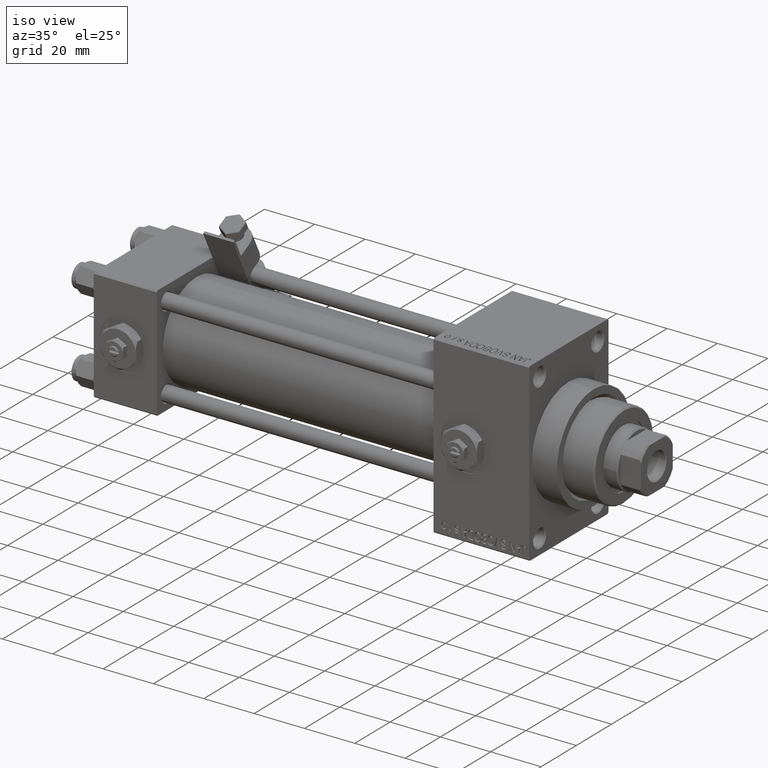
[diagram: clean part render]
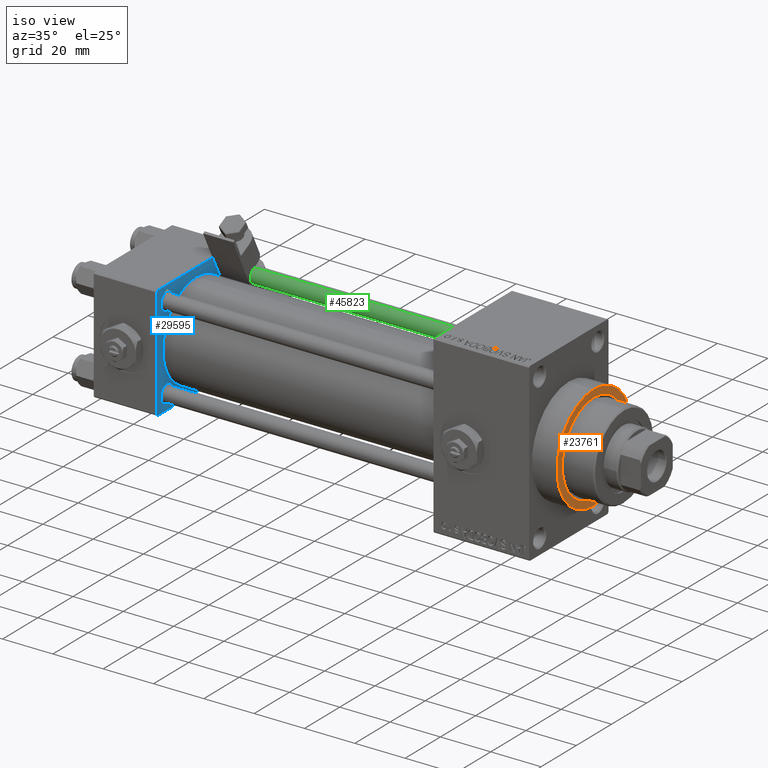
[diagram: same view with three faces highlighted in distinct colors, each labeled with its STEP entity id]
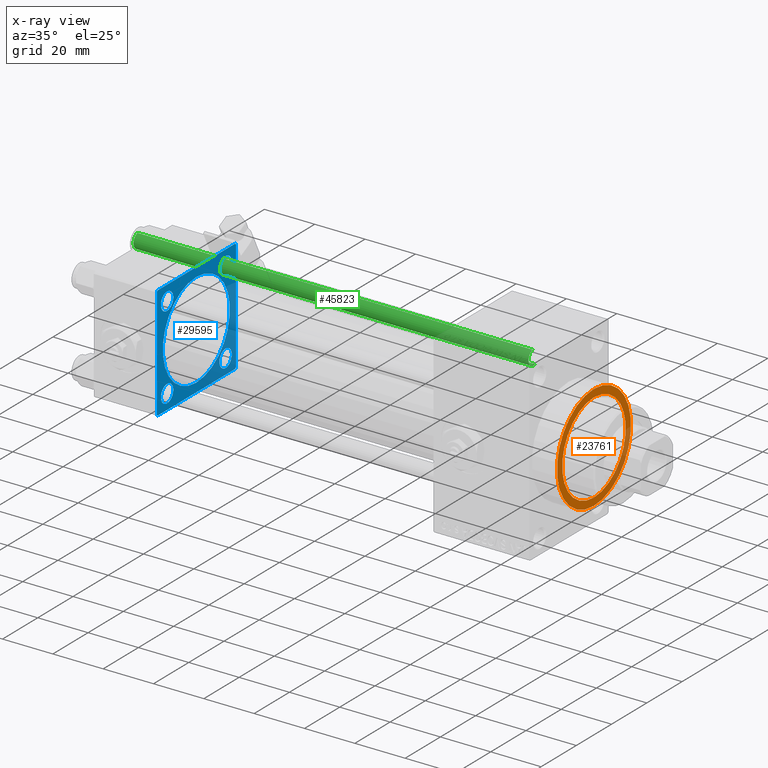
[diagram: x-ray of the same camera — body ghosted, the three highlighted faces saturated]
A machine part, iso view with three faces highlighted in distinct colors.
The next image is the same camera in x-ray (body ghosted, the three faces saturated) — at least one of them is partly hidden behind the body in this view.
Their STEP definitions:

[orange] entity #23761 — the highlighted planar face has unit normal (1, 0, 0).
#3965 = CARTESIAN_POINT ( 'NONE',  ( 183.0000000000000284, 2.571758278209441661E-15, -21.00000000000000000 ) ) ;
#6290 = CIRCLE ( 'NONE', #41016, 18.00000000000007105 ) ;
#7296 = CARTESIAN_POINT ( 'NONE',  ( 183.0000000000000284, 0.000000000000000000, 0.000000000000000000 ) ) ;
#7504 = ORIENTED_EDGE ( 'NONE', *, *, #13057, .T. ) ;
#8502 = DIRECTION ( 'NONE',  ( -1.000000000000000000, -0.000000000000000000, -0.000000000000000000 ) ) ;
#9702 = EDGE_LOOP ( 'NONE', ( #39299, #7504 ) ) ;
#10921 = EDGE_CURVE ( 'NONE', #29826, #20078, #31922, .T. ) ;
#12497 = AXIS2_PLACEMENT_3D ( 'NONE', #7296, #15423, #46866 ) ;
#13057 = EDGE_CURVE ( 'NONE', #45321, #49260, #25549, .T. ) ;
#15228 = DIRECTION ( 'NONE',  ( 1.000000000000000000, 0.000000000000000000, 0.000000000000000000 ) ) ;
#15423 = DIRECTION ( 'NONE',  ( 1.000000000000000000, 0.000000000000000000, 0.000000000000000000 ) ) ;
#16013 = AXIS2_PLACEMENT_3D ( 'NONE', #27638, #15228, #23098 ) ;
#16128 = DIRECTION ( 'NONE',  ( 0.000000000000000000, 0.000000000000000000, -1.000000000000000000 ) ) ;
#20078 = VERTEX_POINT ( 'NONE', #3965 ) ;
#20170 = CARTESIAN_POINT ( 'NONE',  ( 183.0000000000000284, 0.000000000000000000, 0.000000000000000000 ) ) ;
#20355 = CARTESIAN_POINT ( 'NONE',  ( 183.0000000000000284, 0.000000000000000000, -18.00000000000007105 ) ) ;
#20555 = FACE_OUTER_BOUND ( 'NONE', #27015, .T. ) ;
#21047 = ORIENTED_EDGE ( 'NONE', *, *, #34416, .T. ) ;
#21343 = ORIENTED_EDGE ( 'NONE', *, *, #10921, .T. ) ;
#23072 = CARTESIAN_POINT ( 'NONE',  ( 183.0000000000000284, 2.204364238465244894E-15, 18.00000000000007105 ) ) ;
#23098 = DIRECTION ( 'NONE',  ( 0.000000000000000000, 0.000000000000000000, -1.000000000000000000 ) ) ;
#23357 = FACE_BOUND ( 'NONE', #9702, .T. ) ;
#23761 = ADVANCED_FACE ( 'NONE', ( #23357, #20555 ), #34992, .T. ) ;
#24372 = DIRECTION ( 'NONE',  ( 0.000000000000000000, 0.000000000000000000, -1.000000000000000000 ) ) ;
#25136 = CARTESIAN_POINT ( 'NONE',  ( 183.0000000000000284, 0.000000000000000000, 21.00000000000000000 ) ) ;
#25549 = CIRCLE ( 'NONE', #32796, 18.00000000000007105 ) ;
#26441 = CIRCLE ( 'NONE', #16013, 21.00000000000000000 ) ;
#27015 = EDGE_LOOP ( 'NONE', ( #21343, #21047 ) ) ;
#27017 = CARTESIAN_POINT ( 'NONE',  ( 183.0000000000000284, 0.000000000000000000, 0.000000000000000000 ) ) ;
#27398 = DIRECTION ( 'NONE',  ( 1.000000000000000000, 0.000000000000000000, 0.000000000000000000 ) ) ;
#27638 = CARTESIAN_POINT ( 'NONE',  ( 183.0000000000000284, 0.000000000000000000, 0.000000000000000000 ) ) ;
#29826 = VERTEX_POINT ( 'NONE', #25136 ) ;
#30565 = DIRECTION ( 'NONE',  ( 0.000000000000000000, 0.000000000000000000, -1.000000000000000000 ) ) ;
#31922 = CIRCLE ( 'NONE', #12497, 21.00000000000000000 ) ;
#32796 = AXIS2_PLACEMENT_3D ( 'NONE', #27017, #49853, #30565 ) ;
#34416 = EDGE_CURVE ( 'NONE', #20078, #29826, #26441, .T. ) ;
#34992 = PLANE ( 'NONE',  #42313 ) ;
#36004 = CARTESIAN_POINT ( 'NONE',  ( 183.0000000000000284, 0.000000000000000000, 0.000000000000000000 ) ) ;
#36055 = EDGE_CURVE ( 'NONE', #49260, #45321, #6290, .T. ) ;
#39299 = ORIENTED_EDGE ( 'NONE', *, *, #36055, .T. ) ;
#41016 = AXIS2_PLACEMENT_3D ( 'NONE', #20170, #8502, #16128 ) ;
#42313 = AXIS2_PLACEMENT_3D ( 'NONE', #36004, #27398, #24372 ) ;
#45321 = VERTEX_POINT ( 'NONE', #23072 ) ;
#46866 = DIRECTION ( 'NONE',  ( 0.000000000000000000, 0.000000000000000000, -1.000000000000000000 ) ) ;
#49260 = VERTEX_POINT ( 'NONE', #20355 ) ;
#49853 = DIRECTION ( 'NONE',  ( -1.000000000000000000, -0.000000000000000000, -0.000000000000000000 ) ) ;

[blue] entity #29595 — the highlighted planar face has unit normal (-1, 0, 0).
#629 = VERTEX_POINT ( 'NONE', #40461 ) ;
#819 = VERTEX_POINT ( 'NONE', #5394 ) ;
#1004 = CARTESIAN_POINT ( 'NONE',  ( 25.00000000000000000, 16.59999999999999787, 13.10000000000000142 ) ) ;
#1236 = DIRECTION ( 'NONE',  ( 0.000000000000000000, 0.000000000000000000, 1.000000000000000000 ) ) ;
#1811 = EDGE_CURVE ( 'NONE', #34695, #8193, #17989, .T. ) ;
#1978 = VECTOR ( 'NONE', #35354, 1000.000000000000000 ) ;
#2131 = FACE_BOUND ( 'NONE', #39763, .T. ) ;
#2202 = CARTESIAN_POINT ( 'NONE',  ( 25.00000000000000000, -16.59999999999999076, -16.60000000000000853 ) ) ;
#2408 = VERTEX_POINT ( 'NONE', #1004 ) ;
#2744 = CIRCLE ( 'NONE', #35097, 3.499999999999975131 ) ;
#2845 = LINE ( 'NONE', #38085, #32699 ) ;
#3369 = ORIENTED_EDGE ( 'NONE', *, *, #9755, .T. ) ;
#3499 = ORIENTED_EDGE ( 'NONE', *, *, #10101, .T. ) ;
#3694 = VERTEX_POINT ( 'NONE', #7634 ) ;
#4147 = CARTESIAN_POINT ( 'NONE',  ( 25.00000000000000000, 16.59999999999999787, -16.60000000000000497 ) ) ;
#4224 = DIRECTION ( 'NONE',  ( 0.000000000000000000, 0.000000000000000000, 1.000000000000000000 ) ) ;
#4343 = DIRECTION ( 'NONE',  ( 0.000000000000000000, -0.7071067811865474617, 0.7071067811865474617 ) ) ;
#4612 = CARTESIAN_POINT ( 'NONE',  ( 25.00000000000000000, -16.59999999999999076, 16.60000000000000853 ) ) ;
#4655 = DIRECTION ( 'NONE',  ( -1.000000000000000000, 0.000000000000000000, -0.000000000000000000 ) ) ;
#4969 = CARTESIAN_POINT ( 'NONE',  ( 25.00000000000000000, -16.59999999999999076, -13.10000000000003162 ) ) ;
#5394 = CARTESIAN_POINT ( 'NONE',  ( 25.00000000000000000, 16.59999999999999787, -13.10000000000000142 ) ) ;
#5764 = DIRECTION ( 'NONE',  ( -1.000000000000000000, 0.000000000000000000, -0.000000000000000000 ) ) ;
#6464 = DIRECTION ( 'NONE',  ( -1.000000000000000000, 0.000000000000000000, -0.000000000000000000 ) ) ;
#6686 = ORIENTED_EDGE ( 'NONE', *, *, #47954, .T. ) ;
#6789 = ORIENTED_EDGE ( 'NONE', *, *, #35457, .T. ) ;
#7385 = CARTESIAN_POINT ( 'NONE',  ( 25.00000000000000000, 22.50000000000000000, 22.50000000000000355 ) ) ;
#7454 = DIRECTION ( 'NONE',  ( 0.000000000000000000, 0.000000000000000000, 1.000000000000000000 ) ) ;
#7634 = CARTESIAN_POINT ( 'NONE',  ( 25.00000000000000000, 16.59999999999999787, -20.10000000000000853 ) ) ;
#7724 = EDGE_CURVE ( 'NONE', #12552, #13082, #46464, .T. ) ;
#7725 = CARTESIAN_POINT ( 'NONE',  ( 24.99999999999999289, -2.752562955852396712E-16, -19.00000000000000000 ) ) ;
#7818 = AXIS2_PLACEMENT_3D ( 'NONE', #29069, #44559, #36917 ) ;
#8193 = VERTEX_POINT ( 'NONE', #4969 ) ;
#8263 = VERTEX_POINT ( 'NONE', #44803 ) ;
#8357 = CIRCLE ( 'NONE', #9213, 3.500000000000003109 ) ;
#8383 = EDGE_CURVE ( 'NONE', #819, #3694, #44930, .T. ) ;
#8581 = AXIS2_PLACEMENT_3D ( 'NONE', #44546, #6464, #18147 ) ;
#8715 = VECTOR ( 'NONE', #47803, 1000.000000000000000 ) ;
#8805 = CARTESIAN_POINT ( 'NONE',  ( 25.00000000000000000, -16.59999999999999076, -16.60000000000000853 ) ) ;
#9011 = FACE_BOUND ( 'NONE', #45629, .T. ) ;
#9070 = LINE ( 'NONE', #17449, #14711 ) ;
#9213 = AXIS2_PLACEMENT_3D ( 'NONE', #33915, #14657, #10841 ) ;
#9266 = DIRECTION ( 'NONE',  ( -1.000000000000000000, 0.000000000000000000, -0.000000000000000000 ) ) ;
#9494 = VERTEX_POINT ( 'NONE', #48294 ) ;
#9755 = EDGE_CURVE ( 'NONE', #44622, #12552, #42660, .T. ) ;
#10101 = EDGE_CURVE ( 'NONE', #8193, #34695, #2744, .T. ) ;
#10239 = EDGE_CURVE ( 'NONE', #629, #22292, #2845, .T. ) ;
#10685 = VERTEX_POINT ( 'NONE', #46172 ) ;
#10841 = DIRECTION ( 'NONE',  ( 0.000000000000000000, 0.000000000000000000, 1.000000000000000000 ) ) ;
#11489 = CARTESIAN_POINT ( 'NONE',  ( 25.00000000000000000, -16.59999999999999076, 20.09999999999998721 ) ) ;
#11795 = AXIS2_PLACEMENT_3D ( 'NONE', #41023, #33403, #44854 ) ;
#12097 = DIRECTION ( 'NONE',  ( -1.000000000000000000, 0.000000000000000000, -0.000000000000000000 ) ) ;
#12552 = VERTEX_POINT ( 'NONE', #41444 ) ;
#12817 = CARTESIAN_POINT ( 'NONE',  ( 25.00000000000000000, 0.000000000000000000, 0.000000000000000000 ) ) ;
#13082 = VERTEX_POINT ( 'NONE', #46065 ) ;
#14582 = CARTESIAN_POINT ( 'NONE',  ( 25.00000000000000000, 22.50000000000000000, 21.99999999999999645 ) ) ;
#14657 = DIRECTION ( 'NONE',  ( -1.000000000000000000, 0.000000000000000000, -0.000000000000000000 ) ) ;
#14711 = VECTOR ( 'NONE', #20999, 999.9999999999998863 ) ;
#16377 = EDGE_CURVE ( 'NONE', #2408, #31648, #23213, .T. ) ;
#16676 = CARTESIAN_POINT ( 'NONE',  ( 25.00000000000000000, -22.50000000000000000, -21.99999999999997158 ) ) ;
#17136 = DIRECTION ( 'NONE',  ( -0.000000000000000000, 0.000000000000000000, 1.000000000000000000 ) ) ;
#17181 = DIRECTION ( 'NONE',  ( 0.000000000000000000, 0.000000000000000000, -1.000000000000000000 ) ) ;
#17449 = CARTESIAN_POINT ( 'NONE',  ( 25.00000000000000000, -22.50000000000000000, 22.00000000000000000 ) ) ;
#17537 = AXIS2_PLACEMENT_3D ( 'NONE', #4612, #47237, #40382 ) ;
#17744 = EDGE_CURVE ( 'NONE', #21537, #10685, #46985, .T. ) ;
#17797 = DIRECTION ( 'NONE',  ( 1.000000000000000000, -0.000000000000000000, 0.000000000000000000 ) ) ;
#17989 = CIRCLE ( 'NONE', #27666, 3.499999999999975131 ) ;
#18147 = DIRECTION ( 'NONE',  ( 0.000000000000000000, 0.000000000000000000, 1.000000000000000000 ) ) ;
#18310 = ORIENTED_EDGE ( 'NONE', *, *, #1811, .T. ) ;
#19103 = CIRCLE ( 'NONE', #8581, 3.500000000000003109 ) ;
#19569 = DIRECTION ( 'NONE',  ( 0.000000000000000000, -1.000000000000000000, -7.709882115452476934E-17 ) ) ;
#19814 = VECTOR ( 'NONE', #19569, 1000.000000000000000 ) ;
#20153 = LINE ( 'NONE', #35601, #8715 ) ;
#20999 = DIRECTION ( 'NONE',  ( -0.000000000000000000, -0.7071067811865525687, -0.7071067811865425767 ) ) ;
#21240 = ORIENTED_EDGE ( 'NONE', *, *, #8383, .T. ) ;
#21537 = VERTEX_POINT ( 'NONE', #30039 ) ;
#22168 = VECTOR ( 'NONE', #4343, 1000.000000000000114 ) ;
#22180 = EDGE_CURVE ( 'NONE', #31648, #2408, #8357, .T. ) ;
#22262 = AXIS2_PLACEMENT_3D ( 'NONE', #12817, #9266, #17136 ) ;
#22292 = VERTEX_POINT ( 'NONE', #16676 ) ;
#22422 = VERTEX_POINT ( 'NONE', #7725 ) ;
#22782 = ORIENTED_EDGE ( 'NONE', *, *, #22180, .T. ) ;
#22976 = CARTESIAN_POINT ( 'NONE',  ( 25.00000000000000000, -21.99999999999998579, -22.50000000000000711 ) ) ;
#23038 = AXIS2_PLACEMENT_3D ( 'NONE', #4147, #4655, #7454 ) ;
#23213 = CIRCLE ( 'NONE', #7818, 3.500000000000003109 ) ;
#23544 = EDGE_LOOP ( 'NONE', ( #18310, #3499 ) ) ;
#24128 = CIRCLE ( 'NONE', #17537, 3.499999999999978684 ) ;
#24380 = VERTEX_POINT ( 'NONE', #11489 ) ;
#24607 = DIRECTION ( 'NONE',  ( -1.000000000000000000, 0.000000000000000000, -0.000000000000000000 ) ) ;
#24699 = EDGE_LOOP ( 'NONE', ( #44883, #34991, #37873, #3369, #49751, #6686, #33365, #35805 ) ) ;
#24881 = EDGE_LOOP ( 'NONE', ( #50171, #21240 ) ) ;
#25130 = ORIENTED_EDGE ( 'NONE', *, *, #16377, .T. ) ;
#25159 = DIRECTION ( 'NONE',  ( 0.000000000000000000, 0.000000000000000000, 1.000000000000000000 ) ) ;
#25238 = CARTESIAN_POINT ( 'NONE',  ( 25.00000000000000000, -16.59999999999999076, -20.09999999999998366 ) ) ;
#25241 = PLANE ( 'NONE',  #22262 ) ;
#26718 = VERTEX_POINT ( 'NONE', #47727 ) ;
#27440 = DIRECTION ( 'NONE',  ( -0.000000000000000000, 0.7071067811865426878, 0.7071067811865524577 ) ) ;
#27666 = AXIS2_PLACEMENT_3D ( 'NONE', #2202, #5764, #44340 ) ;
#27823 = EDGE_CURVE ( 'NONE', #9494, #22422, #48134, .T. ) ;
#28531 = FACE_BOUND ( 'NONE', #24881, .T. ) ;
#28547 = EDGE_CURVE ( 'NONE', #21537, #8263, #42987, .T. ) ;
#29069 = CARTESIAN_POINT ( 'NONE',  ( 25.00000000000000000, 16.59999999999999787, 16.60000000000000497 ) ) ;
#29595 = ADVANCED_FACE ( 'NONE', ( #36380, #28531, #44020, #2131, #9011, #44271 ), #25241, .F. ) ;
#30039 = CARTESIAN_POINT ( 'NONE',  ( 25.00000000000000000, 21.99999999999999289, -22.49999999999999645 ) ) ;
#30152 = EDGE_CURVE ( 'NONE', #22422, #9494, #31216, .T. ) ;
#31216 = CIRCLE ( 'NONE', #11795, 19.00000000000000000 ) ;
#31353 = EDGE_CURVE ( 'NONE', #3694, #819, #19103, .T. ) ;
#31648 = VERTEX_POINT ( 'NONE', #37036 ) ;
#32099 = VECTOR ( 'NONE', #39184, 1000.000000000000000 ) ;
#32699 = VECTOR ( 'NONE', #17181, 1000.000000000000000 ) ;
#33365 = ORIENTED_EDGE ( 'NONE', *, *, #10239, .T. ) ;
#33403 = DIRECTION ( 'NONE',  ( 1.000000000000000000, -0.000000000000000000, 0.000000000000000000 ) ) ;
#33541 = AXIS2_PLACEMENT_3D ( 'NONE', #40366, #17797, #25159 ) ;
#33915 = CARTESIAN_POINT ( 'NONE',  ( 25.00000000000000000, 16.59999999999999787, 16.60000000000000497 ) ) ;
#34607 = CARTESIAN_POINT ( 'NONE',  ( 25.00000000000000000, 22.50000000000000000, -22.49999999999999645 ) ) ;
#34695 = VERTEX_POINT ( 'NONE', #25238 ) ;
#34991 = ORIENTED_EDGE ( 'NONE', *, *, #17744, .T. ) ;
#35097 = AXIS2_PLACEMENT_3D ( 'NONE', #8805, #12097, #4224 ) ;
#35151 = ORIENTED_EDGE ( 'NONE', *, *, #27823, .F. ) ;
#35354 = DIRECTION ( 'NONE',  ( 0.000000000000000000, -1.000000000000000000, -2.312964634635742957E-16 ) ) ;
#35457 = EDGE_CURVE ( 'NONE', #26718, #24380, #24128, .T. ) ;
#35601 = CARTESIAN_POINT ( 'NONE',  ( 25.00000000000000000, 22.50000000000000000, 22.50000000000000355 ) ) ;
#35700 = CIRCLE ( 'NONE', #45463, 3.499999999999978684 ) ;
#35805 = ORIENTED_EDGE ( 'NONE', *, *, #35936, .T. ) ;
#35936 = EDGE_CURVE ( 'NONE', #22292, #8263, #46317, .T. ) ;
#36380 = FACE_BOUND ( 'NONE', #23544, .T. ) ;
#36917 = DIRECTION ( 'NONE',  ( 0.000000000000000000, 0.000000000000000000, 1.000000000000000000 ) ) ;
#37036 = CARTESIAN_POINT ( 'NONE',  ( 25.00000000000000000, 16.59999999999999787, 20.10000000000000853 ) ) ;
#37873 = ORIENTED_EDGE ( 'NONE', *, *, #38897, .F. ) ;
#38085 = CARTESIAN_POINT ( 'NONE',  ( 25.00000000000000000, -22.50000000000000000, 22.50000000000000000 ) ) ;
#38897 = EDGE_CURVE ( 'NONE', #44622, #10685, #20153, .T. ) ;
#39100 = CARTESIAN_POINT ( 'NONE',  ( 25.00000000000000000, 22.50000000000000000, -21.99999999999998224 ) ) ;
#39184 = DIRECTION ( 'NONE',  ( 0.000000000000000000, 0.7071067811865426878, -0.7071067811865524577 ) ) ;
#39327 = ORIENTED_EDGE ( 'NONE', *, *, #46939, .T. ) ;
#39763 = EDGE_LOOP ( 'NONE', ( #25130, #22782 ) ) ;
#40366 = CARTESIAN_POINT ( 'NONE',  ( 24.99999999999999289, -2.602085213965210642E-15, 0.000000000000000000 ) ) ;
#40382 = DIRECTION ( 'NONE',  ( 0.000000000000000000, 0.000000000000000000, 1.000000000000000000 ) ) ;
#40461 = CARTESIAN_POINT ( 'NONE',  ( 25.00000000000000000, -22.50000000000000000, 22.00000000000000000 ) ) ;
#41023 = CARTESIAN_POINT ( 'NONE',  ( 24.99999999999999289, -2.602085213965210642E-15, 0.000000000000000000 ) ) ;
#41444 = CARTESIAN_POINT ( 'NONE',  ( 25.00000000000000000, 21.99999999999999289, 22.50000000000000355 ) ) ;
#42402 = CARTESIAN_POINT ( 'NONE',  ( 25.00000000000000000, 21.99999999999999289, 22.50000000000000355 ) ) ;
#42660 = LINE ( 'NONE', #42402, #22168 ) ;
#42902 = ORIENTED_EDGE ( 'NONE', *, *, #30152, .F. ) ;
#42987 = LINE ( 'NONE', #34607, #1978 ) ;
#44020 = FACE_BOUND ( 'NONE', #49756, .T. ) ;
#44271 = FACE_OUTER_BOUND ( 'NONE', #24699, .T. ) ;
#44340 = DIRECTION ( 'NONE',  ( 0.000000000000000000, 0.000000000000000000, 1.000000000000000000 ) ) ;
#44546 = CARTESIAN_POINT ( 'NONE',  ( 25.00000000000000000, 16.59999999999999787, -16.60000000000000497 ) ) ;
#44559 = DIRECTION ( 'NONE',  ( -1.000000000000000000, 0.000000000000000000, -0.000000000000000000 ) ) ;
#44622 = VERTEX_POINT ( 'NONE', #14582 ) ;
#44803 = CARTESIAN_POINT ( 'NONE',  ( 25.00000000000000000, -21.99999999999997158, -22.50000000000000711 ) ) ;
#44854 = DIRECTION ( 'NONE',  ( 0.000000000000000000, 0.000000000000000000, 1.000000000000000000 ) ) ;
#44883 = ORIENTED_EDGE ( 'NONE', *, *, #28547, .F. ) ;
#44930 = CIRCLE ( 'NONE', #23038, 3.500000000000003109 ) ;
#45463 = AXIS2_PLACEMENT_3D ( 'NONE', #47681, #24607, #1236 ) ;
#45629 = EDGE_LOOP ( 'NONE', ( #35151, #42902 ) ) ;
#45950 = VECTOR ( 'NONE', #27440, 1000.000000000000000 ) ;
#46065 = CARTESIAN_POINT ( 'NONE',  ( 25.00000000000000000, -21.99999999999997868, 22.50000000000000000 ) ) ;
#46172 = CARTESIAN_POINT ( 'NONE',  ( 25.00000000000000000, 22.50000000000000000, -21.99999999999996803 ) ) ;
#46317 = LINE ( 'NONE', #22976, #32099 ) ;
#46464 = LINE ( 'NONE', #7385, #19814 ) ;
#46939 = EDGE_CURVE ( 'NONE', #24380, #26718, #35700, .T. ) ;
#46985 = LINE ( 'NONE', #39100, #45950 ) ;
#47237 = DIRECTION ( 'NONE',  ( -1.000000000000000000, 0.000000000000000000, -0.000000000000000000 ) ) ;
#47681 = CARTESIAN_POINT ( 'NONE',  ( 25.00000000000000000, -16.59999999999999076, 16.60000000000000853 ) ) ;
#47727 = CARTESIAN_POINT ( 'NONE',  ( 25.00000000000000000, -16.59999999999999076, 13.10000000000002807 ) ) ;
#47803 = DIRECTION ( 'NONE',  ( 0.000000000000000000, 0.000000000000000000, -1.000000000000000000 ) ) ;
#47954 = EDGE_CURVE ( 'NONE', #13082, #629, #9070, .T. ) ;
#48134 = CIRCLE ( 'NONE', #33541, 19.00000000000000000 ) ;
#48294 = CARTESIAN_POINT ( 'NONE',  ( 24.99999999999999289, -2.602085213965210642E-15, 19.00000000000000000 ) ) ;
#49751 = ORIENTED_EDGE ( 'NONE', *, *, #7724, .T. ) ;
#49756 = EDGE_LOOP ( 'NONE', ( #6789, #39327 ) ) ;
#50171 = ORIENTED_EDGE ( 'NONE', *, *, #31353, .T. ) ;

[green] entity #45823 — the highlighted cylindrical surface (edge-blend (fillet) strip) has radius 3 mm, axis along (-1, -0, 0).
#504 = AXIS2_PLACEMENT_3D ( 'NONE', #27847, #32154, #19997 ) ;
#1360 = AXIS2_PLACEMENT_3D ( 'NONE', #5677, #13555, #9495 ) ;
#2194 = DIRECTION ( 'NONE',  ( -0.000000000000000000, -0.000000000000000000, -1.000000000000000000 ) ) ;
#3326 = FACE_OUTER_BOUND ( 'NONE', #19677, .T. ) ;
#3576 = CYLINDRICAL_SURFACE ( 'NONE', #11390, 3.000000000000000444 ) ;
#4184 = CARTESIAN_POINT ( 'NONE',  ( 3.000000000000000444, 3.673940397442060361E-16, 158.0000000000000000 ) ) ;
#5677 = CARTESIAN_POINT ( 'NONE',  ( 0.000000000000000000, 0.000000000000000000, 0.5000000000000281997 ) ) ;
#6486 = VERTEX_POINT ( 'NONE', #30871 ) ;
#8821 = CARTESIAN_POINT ( 'NONE',  ( -3.000000000000000444, 0.000000000000000000, 158.0000000000000000 ) ) ;
#9216 = VERTEX_POINT ( 'NONE', #20790 ) ;
#9495 = DIRECTION ( 'NONE',  ( 1.000000000000000000, 0.000000000000000000, 0.000000000000000000 ) ) ;
#10028 = ORIENTED_EDGE ( 'NONE', *, *, #12453, .F. ) ;
#10287 = CIRCLE ( 'NONE', #1360, 3.000000000000000444 ) ;
#11101 = ORIENTED_EDGE ( 'NONE', *, *, #36848, .T. ) ;
#11390 = AXIS2_PLACEMENT_3D ( 'NONE', #31221, #26669, #42900 ) ;
#12453 = EDGE_CURVE ( 'NONE', #45024, #48065, #46569, .T. ) ;
#13555 = DIRECTION ( 'NONE',  ( -0.000000000000000000, -0.000000000000000000, 1.000000000000000000 ) ) ;
#17465 = EDGE_CURVE ( 'NONE', #6486, #48065, #10287, .T. ) ;
#17964 = VECTOR ( 'NONE', #2194, 1000.000000000000000 ) ;
#19677 = EDGE_LOOP ( 'NONE', ( #10028, #11101, #47953, #41487 ) ) ;
#19997 = DIRECTION ( 'NONE',  ( 1.000000000000000000, 0.000000000000000000, 0.000000000000000000 ) ) ;
#20698 = VECTOR ( 'NONE', #50113, 1000.000000000000000 ) ;
#20790 = CARTESIAN_POINT ( 'NONE',  ( -3.000000000000000444, 0.000000000000000000, 157.5000000000000000 ) ) ;
#22385 = CIRCLE ( 'NONE', #504, 3.000000000000000444 ) ;
#26669 = DIRECTION ( 'NONE',  ( -0.000000000000000000, -0.000000000000000000, -1.000000000000000000 ) ) ;
#27847 = CARTESIAN_POINT ( 'NONE',  ( 0.000000000000000000, 0.000000000000000000, 157.5000000000000000 ) ) ;
#30871 = CARTESIAN_POINT ( 'NONE',  ( -3.000000000000000444, 0.000000000000000000, 0.5000000000000281997 ) ) ;
#31221 = CARTESIAN_POINT ( 'NONE',  ( 0.000000000000000000, 0.000000000000000000, 158.0000000000000000 ) ) ;
#32154 = DIRECTION ( 'NONE',  ( 0.000000000000000000, 0.000000000000000000, -1.000000000000000000 ) ) ;
#36848 = EDGE_CURVE ( 'NONE', #45024, #9216, #22385, .T. ) ;
#39078 = CARTESIAN_POINT ( 'NONE',  ( 3.000000000000000444, 3.673940397442060361E-16, 157.5000000000000000 ) ) ;
#41487 = ORIENTED_EDGE ( 'NONE', *, *, #17465, .T. ) ;
#42900 = DIRECTION ( 'NONE',  ( -1.000000000000000000, 0.000000000000000000, 0.000000000000000000 ) ) ;
#44333 = CARTESIAN_POINT ( 'NONE',  ( 3.000000000000000444, 3.673940397442060361E-16, 0.5000000000000281997 ) ) ;
#45024 = VERTEX_POINT ( 'NONE', #39078 ) ;
#45823 = ADVANCED_FACE ( 'NONE', ( #3326 ), #3576, .T. ) ;
#46569 = LINE ( 'NONE', #4184, #20698 ) ;
#47886 = LINE ( 'NONE', #8821, #17964 ) ;
#47953 = ORIENTED_EDGE ( 'NONE', *, *, #48006, .T. ) ;
#48006 = EDGE_CURVE ( 'NONE', #9216, #6486, #47886, .T. ) ;
#48065 = VERTEX_POINT ( 'NONE', #44333 ) ;
#50113 = DIRECTION ( 'NONE',  ( -0.000000000000000000, -0.000000000000000000, -1.000000000000000000 ) ) ;